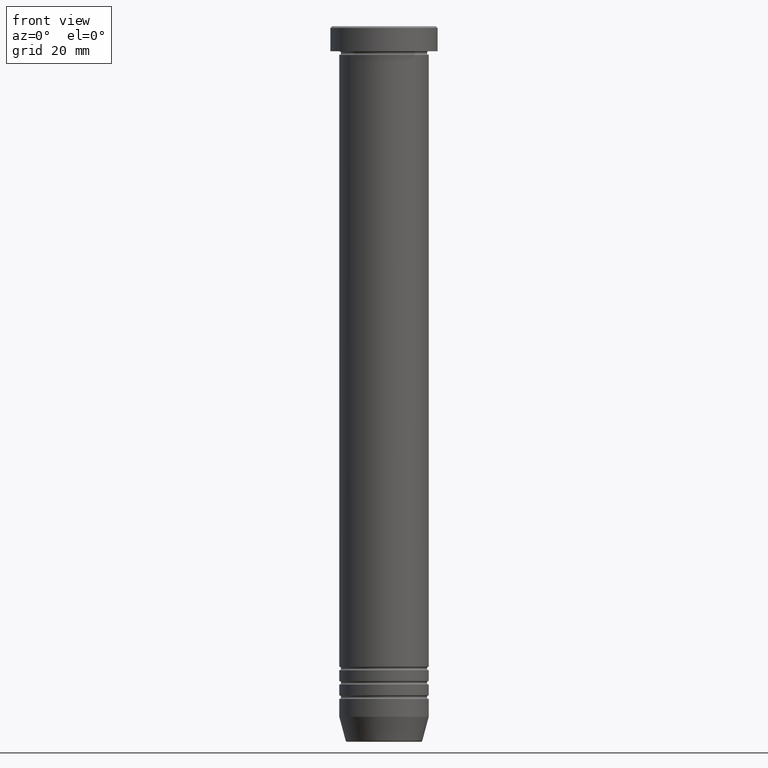
[diagram: clean part render]
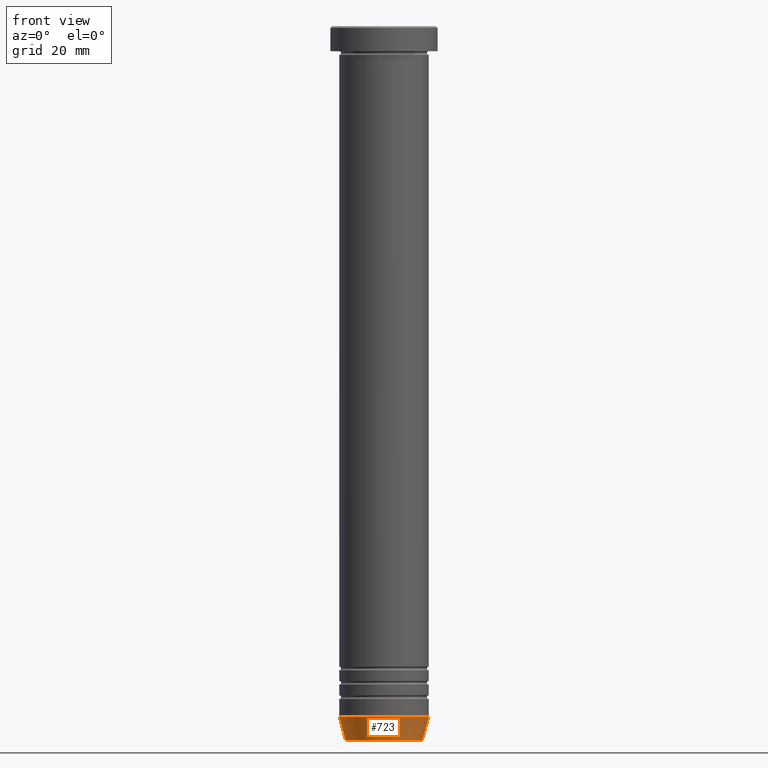
[diagram: same view with one face highlighted and labeled with its STEP entity id]
A machine part, front view. The second image highlights one B-rep face of the part: STEP entity #723.
In plain terms, the highlighted conical surface has half-angle 15 deg.
Its self-contained STEP definition (entity closure, byte-faithful):
#32 = DIRECTION ( 'NONE',  ( 1.000000000000000000, 0.000000000000000000, 0.000000000000000000 ) ) ;
#43 = DIRECTION ( 'NONE',  ( -0.2588190451025213501, 3.169619151431772337E-17, 0.9659258262890680902 ) ) ;
#52 = EDGE_CURVE ( 'NONE', #544, #739, #646, .T. ) ;
#58 = VECTOR ( 'NONE', #43, 1000.000000000000000 ) ;
#83 = LINE ( 'NONE', #406, #144 ) ;
#138 = AXIS2_PLACEMENT_3D ( 'NONE', #571, #501, #560 ) ;
#142 = CONICAL_SURFACE ( 'NONE', #735, 10.62435565298213547, 0.2617993877991500740 ) ;
#144 = VECTOR ( 'NONE', #582, 1000.000000000000000 ) ;
#161 = EDGE_CURVE ( 'NONE', #1020, #739, #83, .T. ) ;
#170 = VERTEX_POINT ( 'NONE', #598 ) ;
#296 = AXIS2_PLACEMENT_3D ( 'NONE', #949, #706, #1041 ) ;
#308 = ORIENTED_EDGE ( 'NONE', *, *, #696, .F. ) ;
#318 = CARTESIAN_POINT ( 'NONE',  ( -12.50000000000000000, 1.530808498934191521E-15, -193.0000000000000000 ) ) ;
#335 = ORIENTED_EDGE ( 'NONE', *, *, #52, .F. ) ;
#368 = CARTESIAN_POINT ( 'NONE',  ( 12.50000000000000000, 0.000000000000000000, -193.0000000000000000 ) ) ;
#406 = CARTESIAN_POINT ( 'NONE',  ( 10.62435565298213547, 0.000000000000000000, -200.0000000000000000 ) ) ;
#501 = DIRECTION ( 'NONE',  ( -0.000000000000000000, -0.000000000000000000, 1.000000000000000000 ) ) ;
#503 = CARTESIAN_POINT ( 'NONE',  ( 0.000000000000000000, 0.000000000000000000, -200.0000000000000000 ) ) ;
#533 = CIRCLE ( 'NONE', #296, 10.72365507213718416 ) ;
#544 = VERTEX_POINT ( 'NONE', #318 ) ;
#560 = DIRECTION ( 'NONE',  ( 1.000000000000000000, 0.000000000000000000, 0.000000000000000000 ) ) ;
#571 = CARTESIAN_POINT ( 'NONE',  ( 0.000000000000000000, 0.000000000000000000, -193.0000000000000000 ) ) ;
#582 = DIRECTION ( 'NONE',  ( 0.2588190451025213501, 0.000000000000000000, 0.9659258262890680902 ) ) ;
#598 = CARTESIAN_POINT ( 'NONE',  ( -10.72365507213718416, 1.422038742429750121E-15, -199.6294095225512990 ) ) ;
#603 = CARTESIAN_POINT ( 'NONE',  ( -10.62435565298213547, 1.301108314342765923E-15, -200.0000000000000000 ) ) ;
#646 = CIRCLE ( 'NONE', #138, 12.50000000000000000 ) ;
#696 = EDGE_CURVE ( 'NONE', #170, #544, #1009, .T. ) ;
#706 = DIRECTION ( 'NONE',  ( -0.000000000000000000, -0.000000000000000000, 1.000000000000000000 ) ) ;
#723 = ADVANCED_FACE ( 'NONE', ( #940 ), #142, .T. ) ;
#735 = AXIS2_PLACEMENT_3D ( 'NONE', #503, #924, #32 ) ;
#739 = VERTEX_POINT ( 'NONE', #368 ) ;
#807 = EDGE_CURVE ( 'NONE', #170, #1020, #533, .T. ) ;
#808 = ORIENTED_EDGE ( 'NONE', *, *, #161, .T. ) ;
#902 = CARTESIAN_POINT ( 'NONE',  ( 10.72365507213718416, 0.000000000000000000, -199.6294095225512990 ) ) ;
#924 = DIRECTION ( 'NONE',  ( -0.000000000000000000, -0.000000000000000000, 1.000000000000000000 ) ) ;
#940 = FACE_OUTER_BOUND ( 'NONE', #941, .T. ) ;
#941 = EDGE_LOOP ( 'NONE', ( #308, #969, #808, #335 ) ) ;
#949 = CARTESIAN_POINT ( 'NONE',  ( 0.000000000000000000, 0.000000000000000000, -199.6294095225512990 ) ) ;
#969 = ORIENTED_EDGE ( 'NONE', *, *, #807, .T. ) ;
#1009 = LINE ( 'NONE', #603, #58 ) ;
#1020 = VERTEX_POINT ( 'NONE', #902 ) ;
#1041 = DIRECTION ( 'NONE',  ( -1.000000000000000000, 0.000000000000000000, 0.000000000000000000 ) ) ;